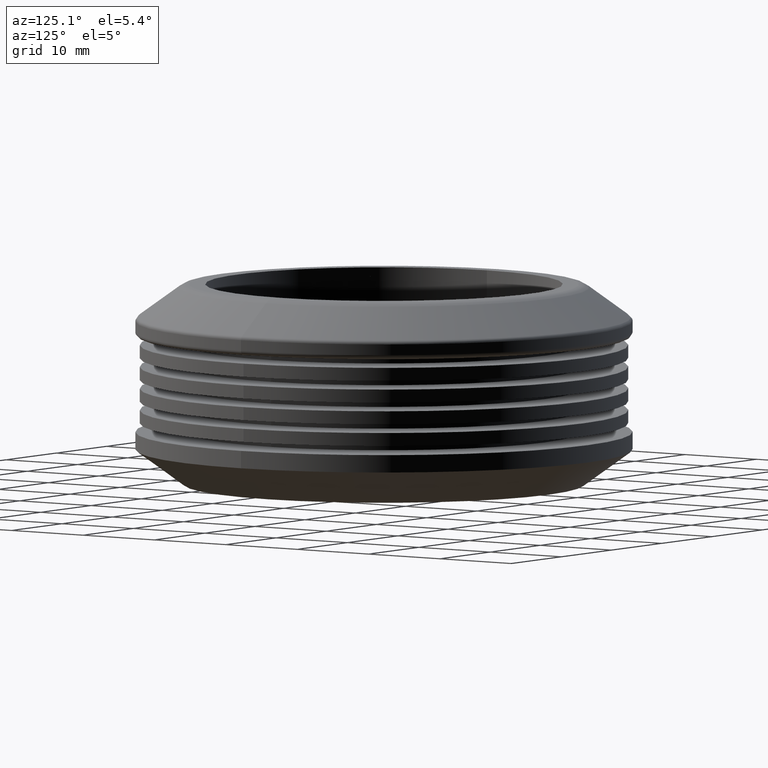
[diagram: clean part render]
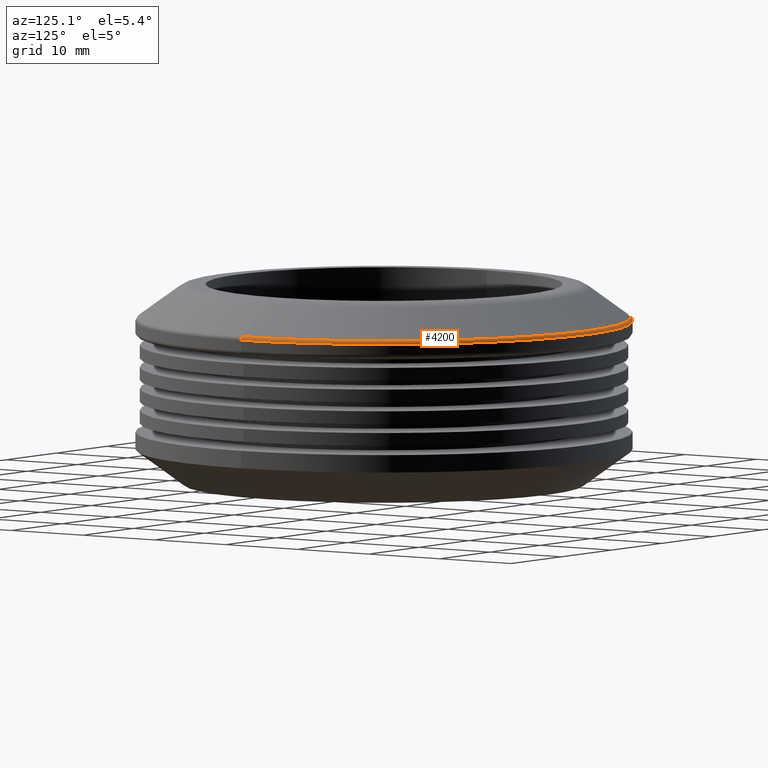
[diagram: same view with one face highlighted and labeled with its STEP entity id]
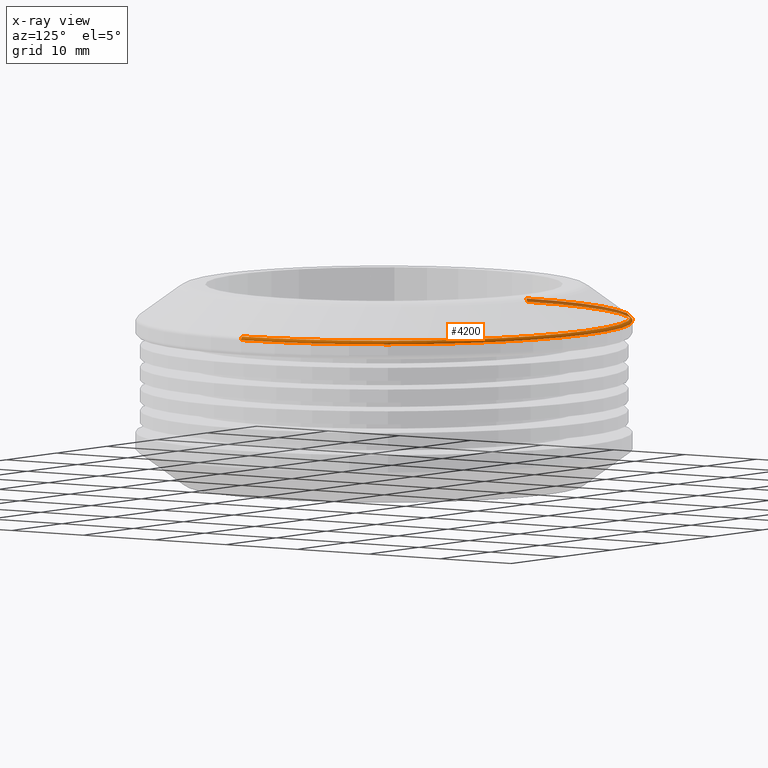
[diagram: x-ray of the same camera — body ghosted, the highlighted face saturated]
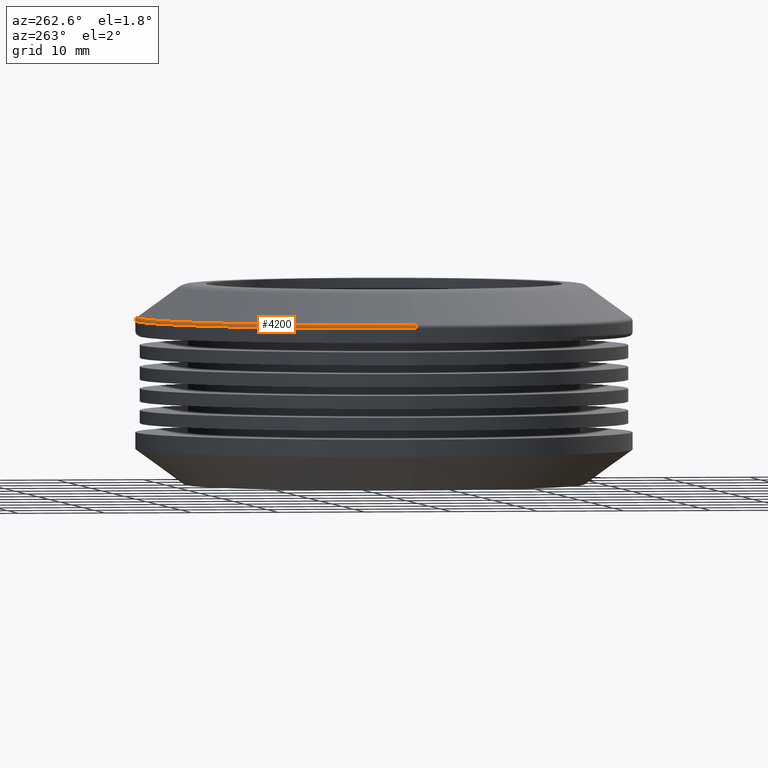
[diagram: same view with one face highlighted and labeled with its STEP entity id]
A machine part, auxiliary view. The second image highlights one B-rep face of the part: STEP entity #4200.
The next image is the same camera in x-ray: the body ghosted, the highlighted face saturated — about 17% of this face is hidden behind the body in this view.
A second angle (auxiliary view) of the same face is appended — the face is thin or edge-on in the first view.
In plain terms, the highlighted toroidal blend (fillet) surface has major radius 28 mm and minor (blend) radius 0.5 mm.
Its self-contained STEP definition (entity closure, byte-faithful):
#669 = AXIS2_PLACEMENT_3D ( 'NONE', #9763, #9897, #7392 ) ;
#918 = CIRCLE ( 'NONE', #3749, 0.5000000000000004400 ) ;
#2398 = ORIENTED_EDGE ( 'NONE', *, *, #14433, .T. ) ;
#2493 = CIRCLE ( 'NONE', #669, 0.5000000000000000000 ) ;
#3045 = CARTESIAN_POINT ( 'NONE',  ( 28.50000000000000000, 0.0000000000000000000, -1.254612295851609300 ) ) ;
#3749 = AXIS2_PLACEMENT_3D ( 'NONE', #10774, #13082, #12050 ) ;
#3781 = ORIENTED_EDGE ( 'NONE', *, *, #7710, .F. ) ;
#4110 = VERTEX_POINT ( 'NONE', #3045 ) ;
#4200 = ADVANCED_FACE ( 'NONE', ( #4829 ), #7523, .T. ) ;
#4517 = EDGE_LOOP ( 'NONE', ( #3781, #2398, #10186, #12614 ) ) ;
#4638 = AXIS2_PLACEMENT_3D ( 'NONE', #9266, #5811, #6887 ) ;
#4699 = DIRECTION ( 'NONE',  ( -0.0000000000000000000, -0.0000000000000000000, 1.000000000000000000 ) ) ;
#4829 = FACE_OUTER_BOUND ( 'NONE', #4517, .T. ) ;
#5811 = DIRECTION ( 'NONE',  ( 0.0000000000000000000, 0.0000000000000000000, -1.000000000000000000 ) ) ;
#6295 = EDGE_CURVE ( 'NONE', #7419, #11745, #2493, .T. ) ;
#6598 = CIRCLE ( 'NONE', #8588, 28.50000000000000000 ) ;
#6887 = DIRECTION ( 'NONE',  ( -1.000000000000000000, 0.0000000000000000000, 0.0000000000000000000 ) ) ;
#7059 = EDGE_CURVE ( 'NONE', #11745, #4110, #6598, .T. ) ;
#7288 = CARTESIAN_POINT ( 'NONE',  ( 0.0000000000000000000, 0.0000000000000000000, -1.254612295851609300 ) ) ;
#7392 = DIRECTION ( 'NONE',  ( 0.0000000000000000000, 0.0000000000000000000, -1.000000000000000000 ) ) ;
#7419 = VERTEX_POINT ( 'NONE', #10593 ) ;
#7472 = CIRCLE ( 'NONE', #11577, 28.29408584883752600 ) ;
#7520 = CARTESIAN_POINT ( 'NONE',  ( 28.29408584883752600, 3.465026166957929600E-015, -0.8502442537000158800 ) ) ;
#7523 = TOROIDAL_SURFACE ( 'NONE', #4638, 28.00000000000000000, 0.5000000000000000000 ) ;
#7710 = EDGE_CURVE ( 'NONE', #12081, #7419, #7472, .T. ) ;
#8588 = AXIS2_PLACEMENT_3D ( 'NONE', #7288, #14109, #14158 ) ;
#9127 = DIRECTION ( 'NONE',  ( 1.000000000000000000, 0.0000000000000000000, 0.0000000000000000000 ) ) ;
#9266 = CARTESIAN_POINT ( 'NONE',  ( 0.0000000000000000000, 0.0000000000000000000, -1.254612295851609300 ) ) ;
#9763 = CARTESIAN_POINT ( 'NONE',  ( -28.00000000000000000, 0.0000000000000000000, -1.254612295851609300 ) ) ;
#9897 = DIRECTION ( 'NONE',  ( -0.0000000000000000000, -1.000000000000000000, -0.0000000000000000000 ) ) ;
#10186 = ORIENTED_EDGE ( 'NONE', *, *, #7059, .F. ) ;
#10593 = CARTESIAN_POINT ( 'NONE',  ( -28.29408584883752600, 0.0000000000000000000, -0.8502442537000158800 ) ) ;
#10774 = CARTESIAN_POINT ( 'NONE',  ( 28.00000000000000000, 3.429011037612589300E-015, -1.254612295851609300 ) ) ;
#11575 = CARTESIAN_POINT ( 'NONE',  ( 0.0000000000000000000, 0.0000000000000000000, -0.8502442537000158800 ) ) ;
#11577 = AXIS2_PLACEMENT_3D ( 'NONE', #11575, #4699, #9127 ) ;
#11745 = VERTEX_POINT ( 'NONE', #12152 ) ;
#12050 = DIRECTION ( 'NONE',  ( -1.000000000000000000, -1.224646799147349500E-016, 0.0000000000000000000 ) ) ;
#12081 = VERTEX_POINT ( 'NONE', #7520 ) ;
#12152 = CARTESIAN_POINT ( 'NONE',  ( -28.50000000000000000, 3.490243377569956500E-015, -1.254612295851609300 ) ) ;
#12614 = ORIENTED_EDGE ( 'NONE', *, *, #6295, .F. ) ;
#13082 = DIRECTION ( 'NONE',  ( -1.224646799147353200E-016, 1.000000000000000000, 0.0000000000000000000 ) ) ;
#14109 = DIRECTION ( 'NONE',  ( 0.0000000000000000000, 0.0000000000000000000, -1.000000000000000000 ) ) ;
#14158 = DIRECTION ( 'NONE',  ( -1.000000000000000000, 0.0000000000000000000, 0.0000000000000000000 ) ) ;
#14433 = EDGE_CURVE ( 'NONE', #12081, #4110, #918, .T. ) ;